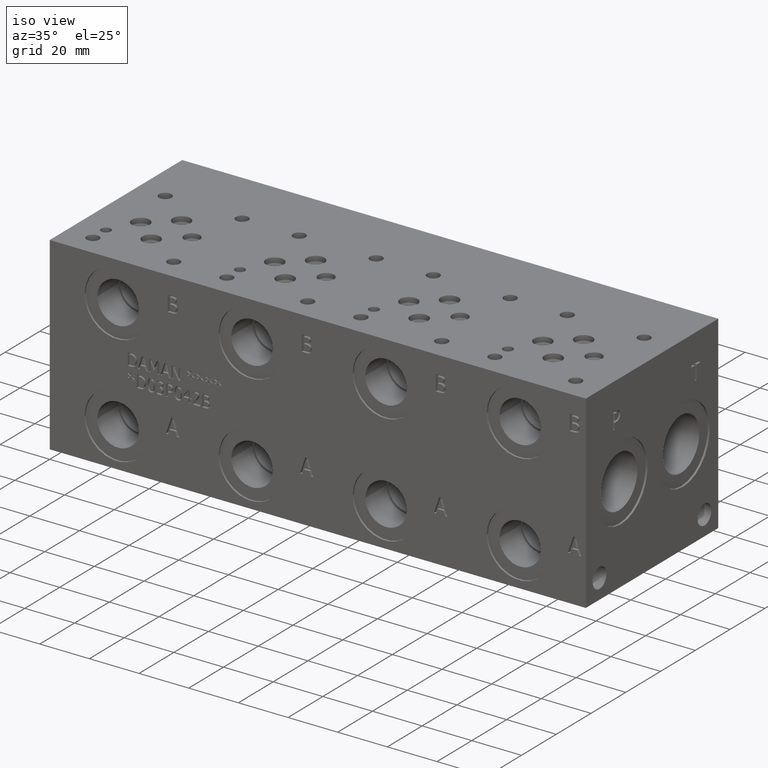
[diagram: clean part render]
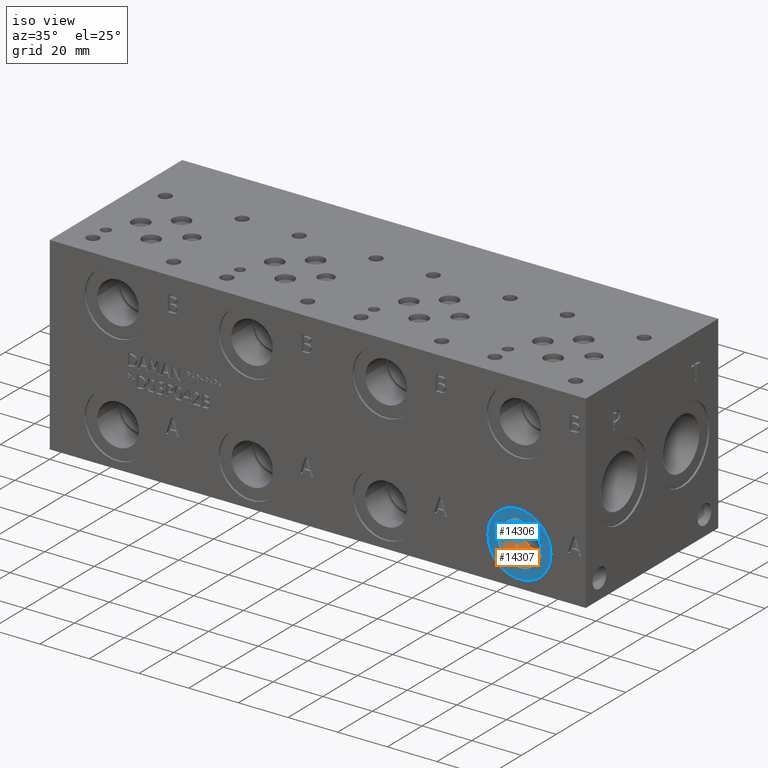
[diagram: same view with the hole feature highlighted: cylindrical wall and planar end face, labeled with their STEP entity ids]
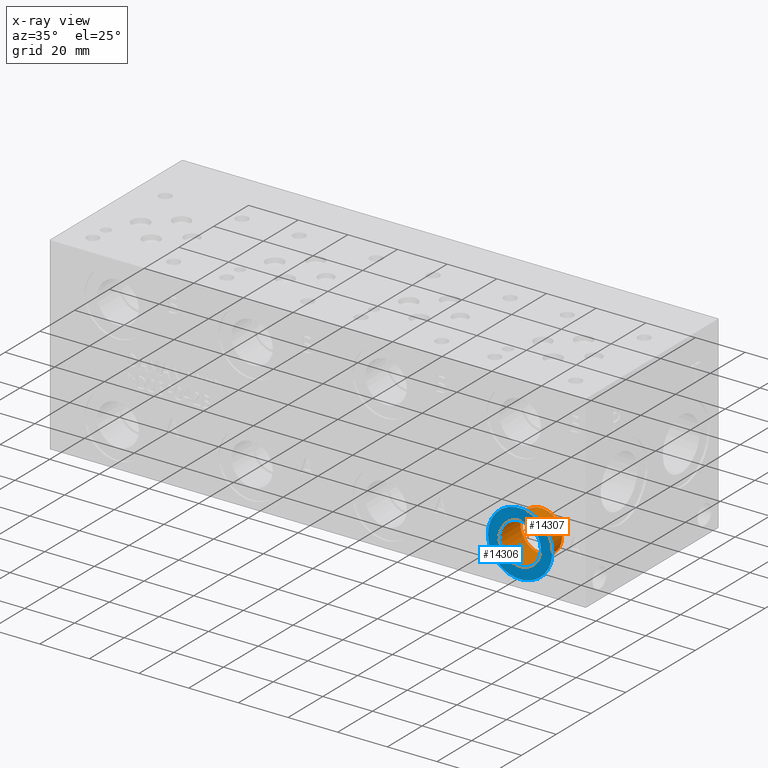
[diagram: x-ray of the same camera — body ghosted, the hole faces saturated]
A machine part, iso view. The highlighted faces form one hole feature of diameter 16.764 mm: the cylindrical wall (entity #14307, orange) and its adjacent planar end face (entity #14306, blue) — they share a circular edge in the B-rep.
The next image is the same camera in x-ray (body ghosted, the hole faces saturated) — the bore reads through the body.
Wall:
#79=CYLINDRICAL_SURFACE('',#14942,8.38200000000001);
#220=CIRCLE('',#14940,8.38200000000001);
#221=CIRCLE('',#14941,8.38200000000001);
#222=CIRCLE('',#14943,8.38200000000001);
#223=CIRCLE('',#14944,8.38200000000001);
#1761=FACE_OUTER_BOUND('',#2581,.T.);
#2581=EDGE_LOOP('',(#11722,#11723,#11724,#11725,#11726,#11727));
#3982=LINE('',#23905,#5257);
#5257=VECTOR('',#17438,8.38200000000001);
#6418=VERTEX_POINT('',#23899);
#6419=VERTEX_POINT('',#23900);
#6420=VERTEX_POINT('',#23904);
#6421=VERTEX_POINT('',#23906);
#8304=EDGE_CURVE('',#6418,#6419,#220,.T.);
#8305=EDGE_CURVE('',#6419,#6418,#221,.T.);
#8306=EDGE_CURVE('',#6419,#6420,#3982,.T.);
#8307=EDGE_CURVE('',#6420,#6421,#222,.T.);
#8308=EDGE_CURVE('',#6421,#6420,#223,.T.);
#11722=ORIENTED_EDGE('',*,*,#8304,.F.);
#11723=ORIENTED_EDGE('',*,*,#8305,.F.);
#11724=ORIENTED_EDGE('',*,*,#8306,.T.);
#11725=ORIENTED_EDGE('',*,*,#8307,.T.);
#11726=ORIENTED_EDGE('',*,*,#8308,.T.);
#11727=ORIENTED_EDGE('',*,*,#8306,.F.);
#14307=ADVANCED_FACE('',(#1761),#79,.F.);
#14940=AXIS2_PLACEMENT_3D('',#23901,#17432,#17433);
#14941=AXIS2_PLACEMENT_3D('',#23902,#17434,#17435);
#14942=AXIS2_PLACEMENT_3D('',#23903,#17436,#17437);
#14943=AXIS2_PLACEMENT_3D('',#23907,#17439,#17440);
#14944=AXIS2_PLACEMENT_3D('',#23908,#17441,#17442);
#17432=DIRECTION('center_axis',(0.,1.,0.));
#17433=DIRECTION('ref_axis',(1.,0.,0.));
#17434=DIRECTION('center_axis',(0.,1.,0.));
#17435=DIRECTION('ref_axis',(1.,0.,0.));
#17436=DIRECTION('center_axis',(0.,1.,0.));
#17437=DIRECTION('ref_axis',(1.,0.,0.));
#17438=DIRECTION('',(0.,1.,0.));
#17439=DIRECTION('center_axis',(0.,1.,0.));
#17440=DIRECTION('ref_axis',(1.,0.,0.));
#17441=DIRECTION('center_axis',(0.,1.,0.));
#17442=DIRECTION('ref_axis',(1.,0.,0.));
#23899=CARTESIAN_POINT('',(197.2818,0.7874,15.875));
#23900=CARTESIAN_POINT('',(180.5178,0.7874,15.875));
#23901=CARTESIAN_POINT('Origin',(188.8998,0.7874,15.875));
#23902=CARTESIAN_POINT('Origin',(188.8998,0.7874,15.875));
#23903=CARTESIAN_POINT('Origin',(188.8998,6.8834,15.875));
#23904=CARTESIAN_POINT('',(180.5178,12.9794,15.875));
#23905=CARTESIAN_POINT('',(180.5178,6.8834,15.875));
#23906=CARTESIAN_POINT('',(197.2818,12.9794,15.875));
#23907=CARTESIAN_POINT('Origin',(188.8998,12.9794,15.875));
#23908=CARTESIAN_POINT('Origin',(188.8998,12.9794,15.875));
End face:
#218=CIRCLE('',#14937,12.9667);
#219=CIRCLE('',#14938,12.9667);
#220=CIRCLE('',#14940,8.38200000000001);
#221=CIRCLE('',#14941,8.38200000000001);
#660=FACE_BOUND('',#2580,.T.);
#1760=FACE_OUTER_BOUND('',#2579,.T.);
#2579=EDGE_LOOP('',(#11718,#11719));
#2580=EDGE_LOOP('',(#11720,#11721));
#6416=VERTEX_POINT('',#23893);
#6417=VERTEX_POINT('',#23895);
#6418=VERTEX_POINT('',#23899);
#6419=VERTEX_POINT('',#23900);
#8302=EDGE_CURVE('',#6416,#6417,#218,.T.);
#8303=EDGE_CURVE('',#6417,#6416,#219,.T.);
#8304=EDGE_CURVE('',#6418,#6419,#220,.T.);
#8305=EDGE_CURVE('',#6419,#6418,#221,.T.);
#11718=ORIENTED_EDGE('',*,*,#8303,.F.);
#11719=ORIENTED_EDGE('',*,*,#8302,.F.);
#11720=ORIENTED_EDGE('',*,*,#8304,.T.);
#11721=ORIENTED_EDGE('',*,*,#8305,.T.);
#13224=PLANE('',#14939);
#14306=ADVANCED_FACE('',(#1760,#660),#13224,.F.);
#14937=AXIS2_PLACEMENT_3D('',#23896,#17426,#17427);
#14938=AXIS2_PLACEMENT_3D('',#23897,#17428,#17429);
#14939=AXIS2_PLACEMENT_3D('',#23898,#17430,#17431);
#14940=AXIS2_PLACEMENT_3D('',#23901,#17432,#17433);
#14941=AXIS2_PLACEMENT_3D('',#23902,#17434,#17435);
#17426=DIRECTION('center_axis',(0.,1.,0.));
#17427=DIRECTION('ref_axis',(1.,0.,0.));
#17428=DIRECTION('center_axis',(0.,1.,0.));
#17429=DIRECTION('ref_axis',(1.,0.,0.));
#17430=DIRECTION('center_axis',(0.,1.,0.));
#17431=DIRECTION('ref_axis',(0.,0.,1.));
#17432=DIRECTION('center_axis',(0.,1.,0.));
#17433=DIRECTION('ref_axis',(1.,0.,0.));
#17434=DIRECTION('center_axis',(0.,1.,0.));
#17435=DIRECTION('ref_axis',(1.,0.,0.));
#23893=CARTESIAN_POINT('',(175.9331,0.7874,15.875));
#23895=CARTESIAN_POINT('',(201.8665,0.7874,15.875));
#23896=CARTESIAN_POINT('Origin',(188.8998,0.7874,15.875));
#23897=CARTESIAN_POINT('Origin',(188.8998,0.7874,15.875));
#23898=CARTESIAN_POINT('Origin',(197.2818,0.7874,15.875));
#23899=CARTESIAN_POINT('',(197.2818,0.7874,15.875));
#23900=CARTESIAN_POINT('',(180.5178,0.7874,15.875));
#23901=CARTESIAN_POINT('Origin',(188.8998,0.7874,15.875));
#23902=CARTESIAN_POINT('Origin',(188.8998,0.7874,15.875));